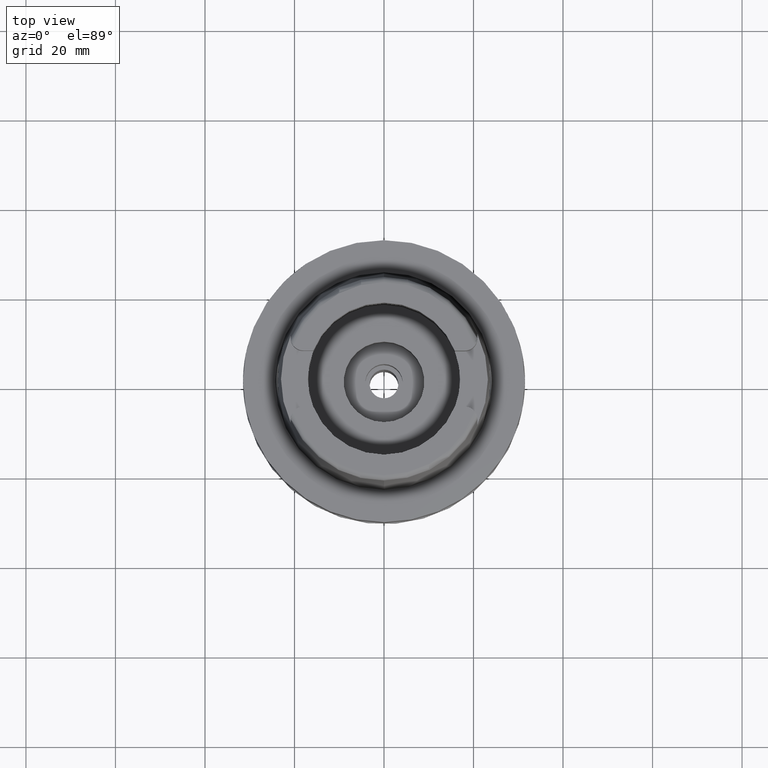
[diagram: clean part render]
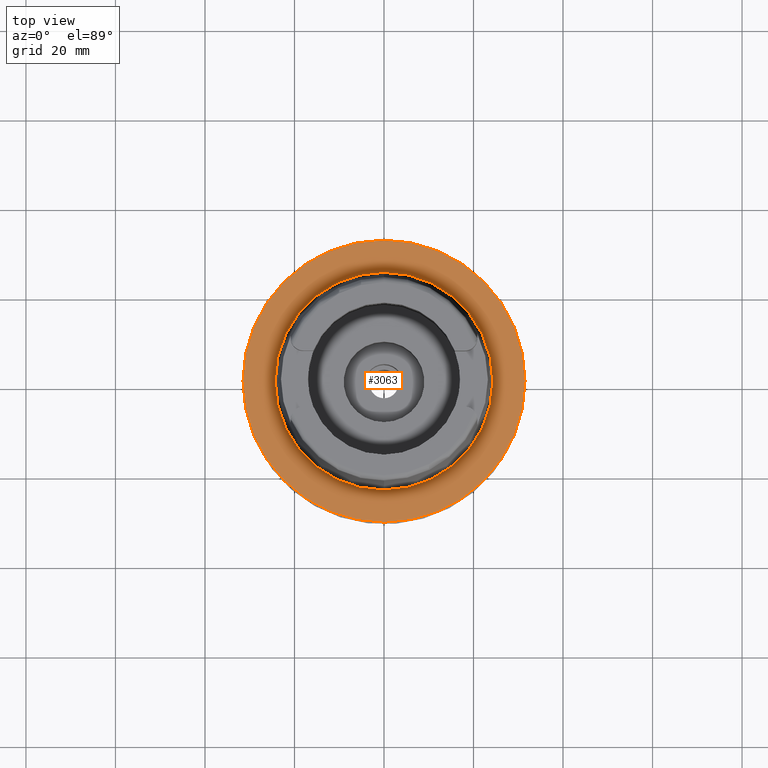
[diagram: same view with one face highlighted and labeled with its STEP entity id]
A machine part, top view. The second image highlights one B-rep face of the part: STEP entity #3063.
In plain terms, the highlighted planar face has unit normal (0, 0, 1).
Its self-contained STEP definition (entity closure, byte-faithful):
#33 = CARTESIAN_POINT ( 'NONE',  ( 0.0000000000000000000, 0.0000000000000000000, 0.0000000000000000000 ) ) ;
#49 = EDGE_LOOP ( 'NONE', ( #3775, #4206 ) ) ;
#159 = DIRECTION ( 'NONE',  ( 0.0000000000000000000, 0.0000000000000000000, 1.000000000000000000 ) ) ;
#425 = CARTESIAN_POINT ( 'NONE',  ( 0.0000000000000000000, 31.50000000000000000, 0.0000000000000000000 ) ) ;
#436 = EDGE_LOOP ( 'NONE', ( #5013, #2992 ) ) ;
#468 = DIRECTION ( 'NONE',  ( 0.0000000000000000000, 0.0000000000000000000, 1.000000000000000000 ) ) ;
#583 = CARTESIAN_POINT ( 'NONE',  ( 0.0000000000000000000, -31.50000000000000000, 0.0000000000000000000 ) ) ;
#685 = PLANE ( 'NONE',  #4634 ) ;
#778 = EDGE_CURVE ( 'NONE', #2143, #4362, #2096, .T. ) ;
#815 = DIRECTION ( 'NONE',  ( 0.0000000000000000000, 0.0000000000000000000, -1.000000000000000000 ) ) ;
#861 = CARTESIAN_POINT ( 'NONE',  ( 0.0000000000000000000, 24.31503482328999866, -1.705302565823999926E-12 ) ) ;
#1078 = CARTESIAN_POINT ( 'NONE',  ( 0.0000000000000000000, 0.0000000000000000000, 0.0000000000000000000 ) ) ;
#1256 = CIRCLE ( 'NONE', #3023, 31.50000000000000000 ) ;
#1543 = VERTEX_POINT ( 'NONE', #425 ) ;
#1664 = CARTESIAN_POINT ( 'NONE',  ( 0.0000000000000000000, 0.0000000000000000000, 0.0000000000000000000 ) ) ;
#1678 = CIRCLE ( 'NONE', #2563, 31.50000000000000000 ) ;
#1833 = AXIS2_PLACEMENT_3D ( 'NONE', #3047, #159, #2662 ) ;
#2096 = CIRCLE ( 'NONE', #1833, 24.31503482328999866 ) ;
#2143 = VERTEX_POINT ( 'NONE', #861 ) ;
#2167 = CARTESIAN_POINT ( 'NONE',  ( 0.0000000000000000000, 0.0000000000000000000, -1.705302565823999926E-12 ) ) ;
#2291 = CARTESIAN_POINT ( 'NONE',  ( 0.0000000000000000000, -24.31503482328999866, -9.485745522396998208E-13 ) ) ;
#2563 = AXIS2_PLACEMENT_3D ( 'NONE', #1664, #3357, #3987 ) ;
#2662 = DIRECTION ( 'NONE',  ( 0.0000000000000000000, 1.000000000000000000, 0.0000000000000000000 ) ) ;
#2710 = FACE_OUTER_BOUND ( 'NONE', #436, .T. ) ;
#2744 = AXIS2_PLACEMENT_3D ( 'NONE', #2167, #468, #3389 ) ;
#2992 = ORIENTED_EDGE ( 'NONE', *, *, #5219, .F. ) ;
#3023 = AXIS2_PLACEMENT_3D ( 'NONE', #33, #815, #4282 ) ;
#3047 = CARTESIAN_POINT ( 'NONE',  ( 0.0000000000000000000, 0.0000000000000000000, -1.705302565823999926E-12 ) ) ;
#3063 = ADVANCED_FACE ( 'NONE', ( #2710, #4393 ), #685, .T. ) ;
#3357 = DIRECTION ( 'NONE',  ( 0.0000000000000000000, 0.0000000000000000000, -1.000000000000000000 ) ) ;
#3362 = CIRCLE ( 'NONE', #2744, 24.31503482328999866 ) ;
#3389 = DIRECTION ( 'NONE',  ( 0.0000000000000000000, -1.000000000000000000, 0.0000000000000000000 ) ) ;
#3664 = EDGE_CURVE ( 'NONE', #4362, #2143, #3362, .T. ) ;
#3740 = EDGE_CURVE ( 'NONE', #1543, #3785, #1678, .T. ) ;
#3775 = ORIENTED_EDGE ( 'NONE', *, *, #778, .F. ) ;
#3785 = VERTEX_POINT ( 'NONE', #583 ) ;
#3987 = DIRECTION ( 'NONE',  ( 0.0000000000000000000, 1.000000000000000000, 0.0000000000000000000 ) ) ;
#4036 = DIRECTION ( 'NONE',  ( 1.000000000000000000, 0.0000000000000000000, 0.0000000000000000000 ) ) ;
#4206 = ORIENTED_EDGE ( 'NONE', *, *, #3664, .F. ) ;
#4282 = DIRECTION ( 'NONE',  ( 0.0000000000000000000, -1.000000000000000000, 0.0000000000000000000 ) ) ;
#4362 = VERTEX_POINT ( 'NONE', #2291 ) ;
#4393 = FACE_BOUND ( 'NONE', #49, .T. ) ;
#4634 = AXIS2_PLACEMENT_3D ( 'NONE', #1078, #5364, #4036 ) ;
#5013 = ORIENTED_EDGE ( 'NONE', *, *, #3740, .F. ) ;
#5219 = EDGE_CURVE ( 'NONE', #3785, #1543, #1256, .T. ) ;
#5364 = DIRECTION ( 'NONE',  ( 0.0000000000000000000, 0.0000000000000000000, 1.000000000000000000 ) ) ;